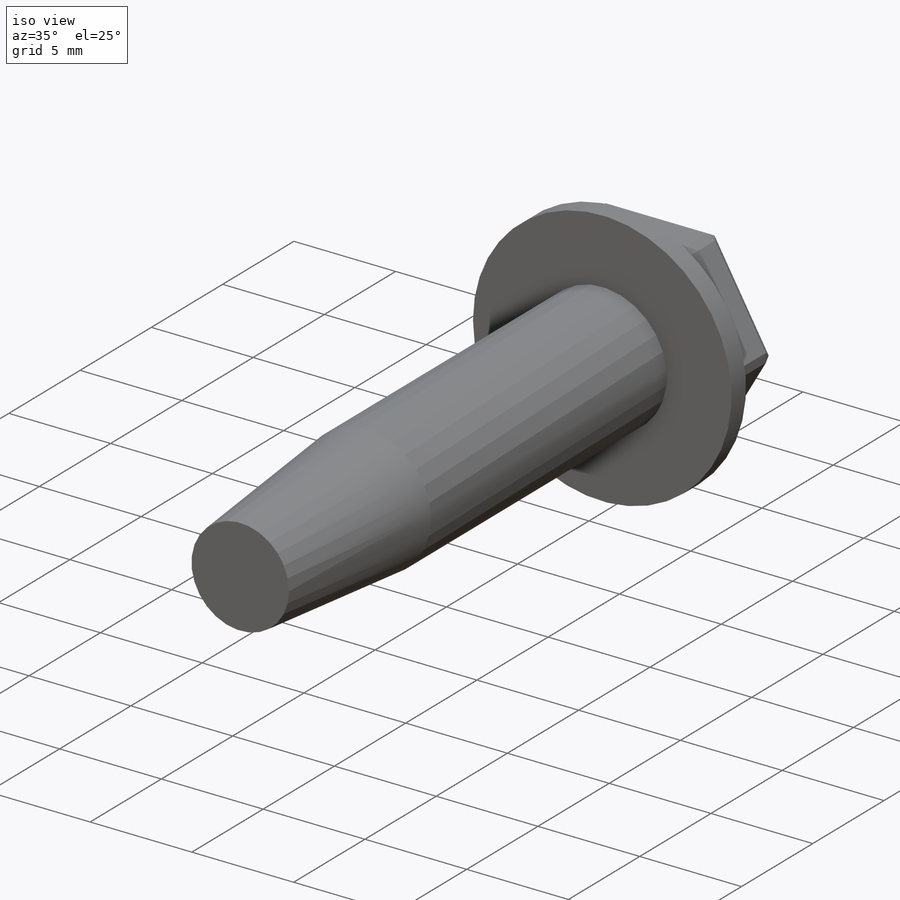
[diagram: iso view]
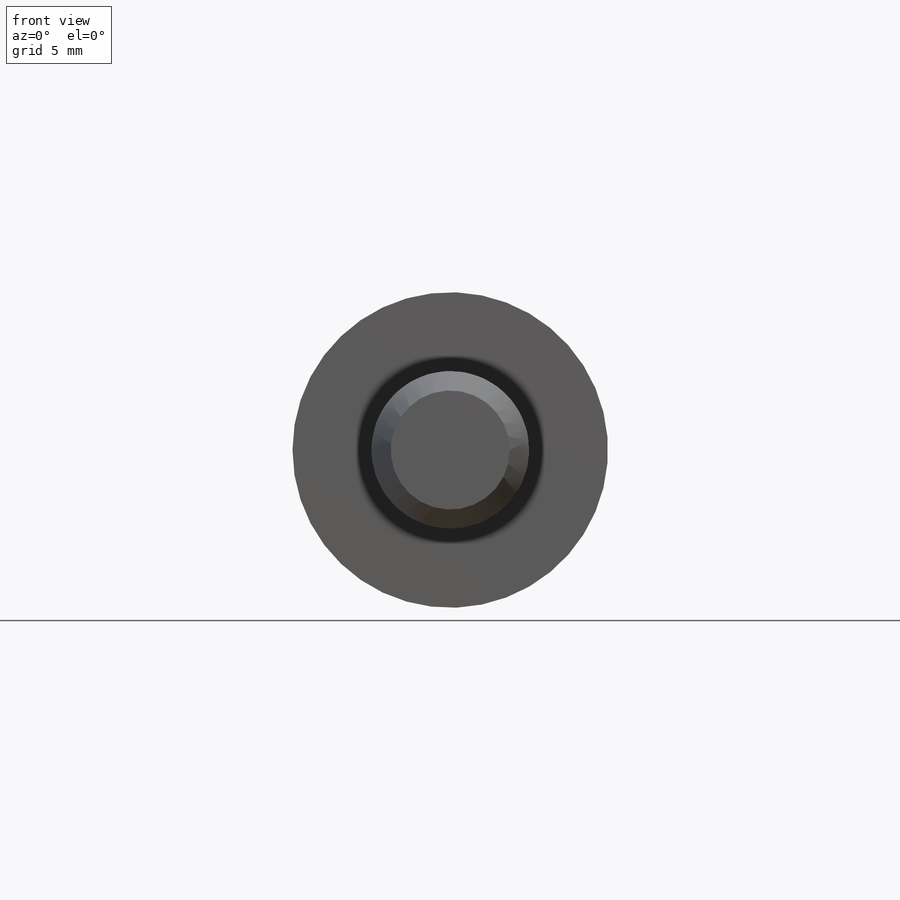
[diagram: front view]
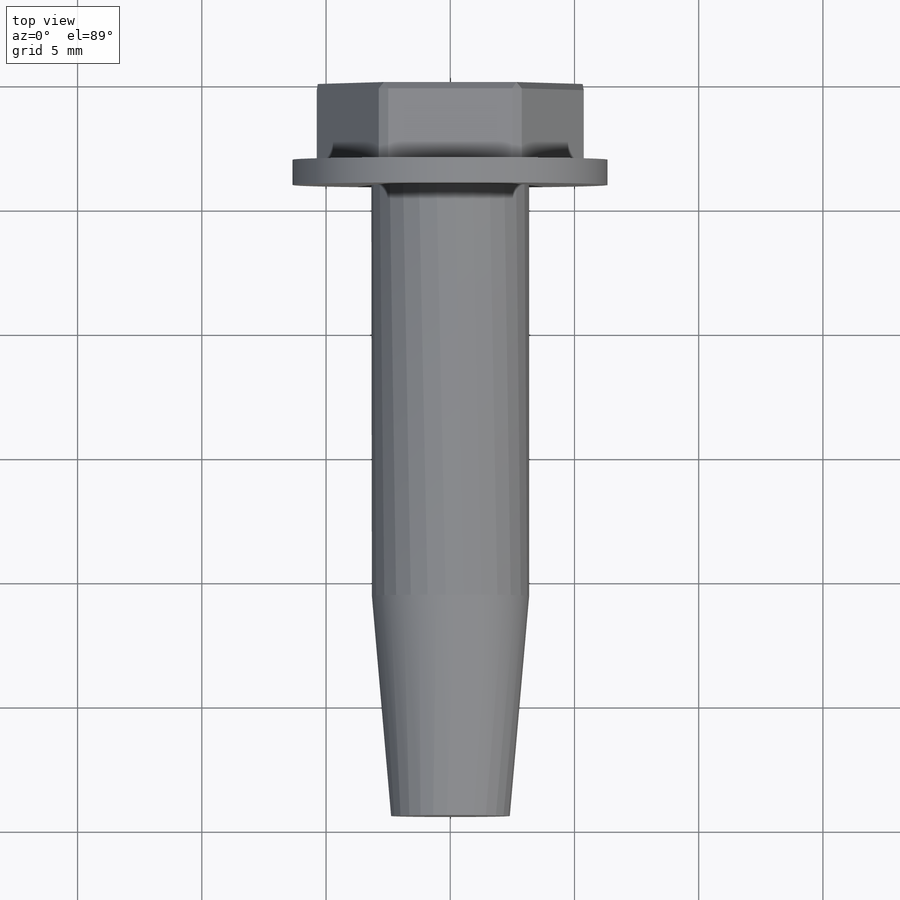
[diagram: top view]
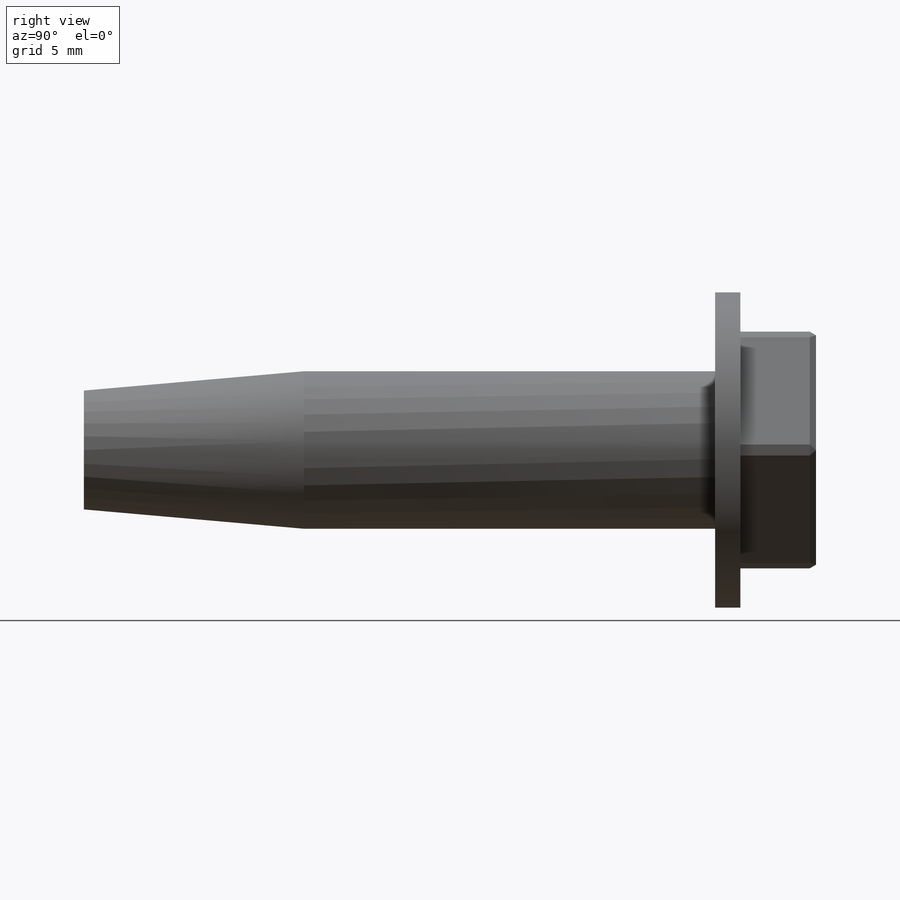
[diagram: right view]
SOLIDWORKS PART (.sldprt)
format: sldprt  version: not decoded by parser v0  size: 225,280 bytes
history: native  units: mm
features: sketch x4, chamfer x4, extrude x3, material x1, plane x1, revolve x1 (+16 scaffold rows collapsed; 1 parser-record rows omitted)
feature tree (31):
  parser-record x1  (decoder bookkeeping rows leaked as tree rows — omitted from the tree; the rows remain in map.json)
  scaffold x16  (default folders/planes/origin — collapsed)
  material  "AISI 4130 Steel, annealed at 865C"
  plane  "Plane1"
  sketch  "Sketch1"  dims[D1=6.35mm D2=3.048mm D3=4.064mm]
  revolve  "Revolve1"  Angle=360deg
  sketch  "Sketch2"  dims[c1.D1=~2.749631mm c1.D2=~5.499261mm c1.D3=~2.749631mm c1.D4=~5.499261mm c2.D1=~2.749631mm c2.D2=~5.499261mm c2.D3=~2.749631mm]
  extrude  "Extrude1"  Depth=3.048mm
  sketch  "Sketch3"  dims[D1=6.35mm]
  extrude  "Extrude2"  Depth=16.542209mm
  sketch  "Sketch4"  dims[D1=6.35mm]
  extrude  "Extrude3"  Depth=8.857791mm
  chamfer  "Chamfer1"  Distance=0.254mm Angle=30deg
  chamfer  "ModelUUID"  [1 undecoded]
  chamfer  "UUID"  [1 undecoded]
  chamfer  "ModelUUID"  [1 undecoded]
decode coverage: 9 of 12 modeling features carry decoded parameters
note: ~ marks probable driven/reference dimensions
note: 3 parameter values undecoded
summary: no parameter record found for 3 features
note: suppression state not decoded; provenance and decode notes live in map.json
